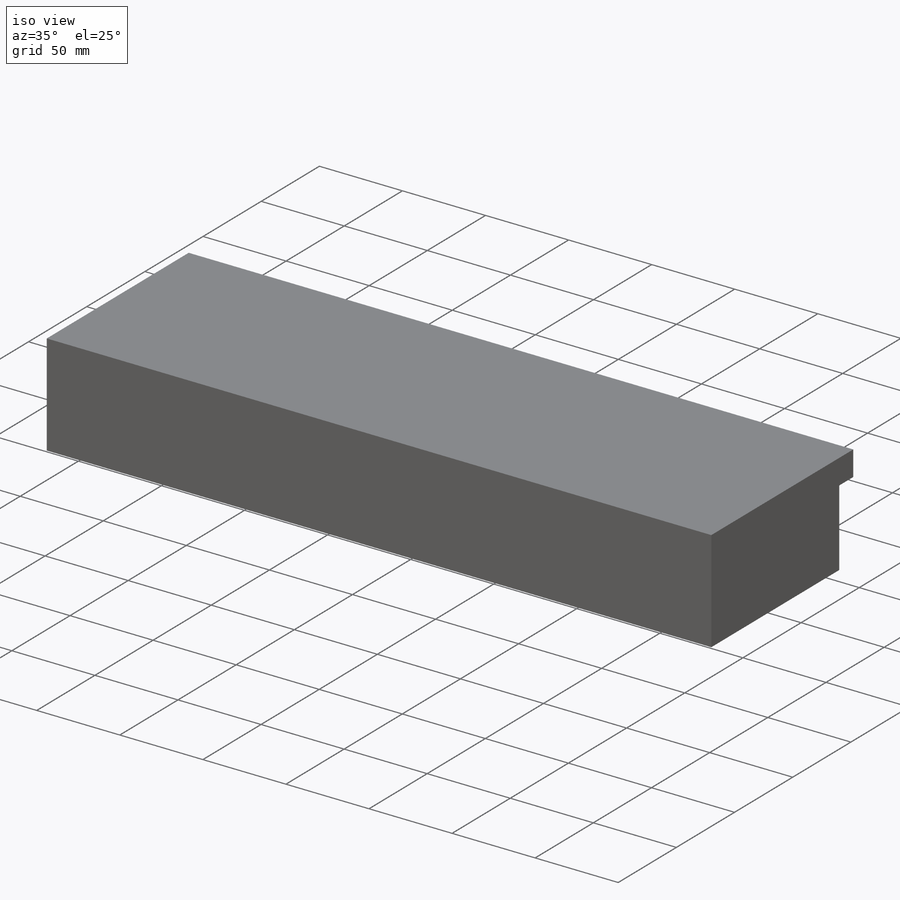
[diagram: iso view]
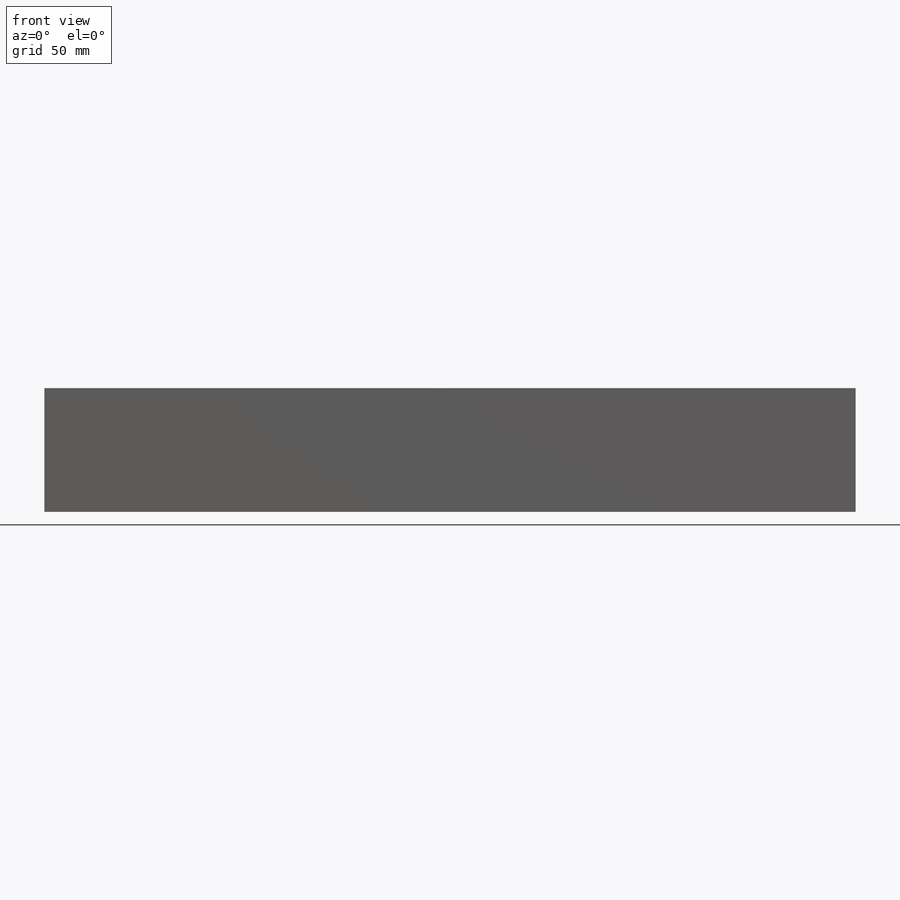
[diagram: front view]
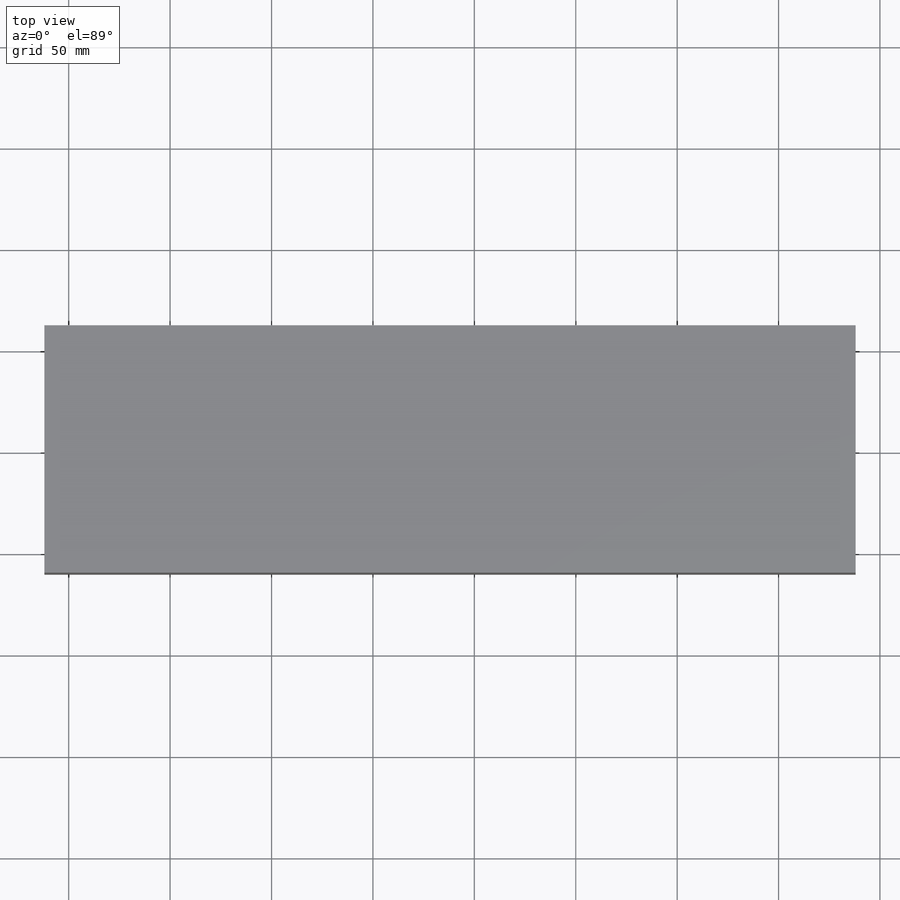
[diagram: top view]
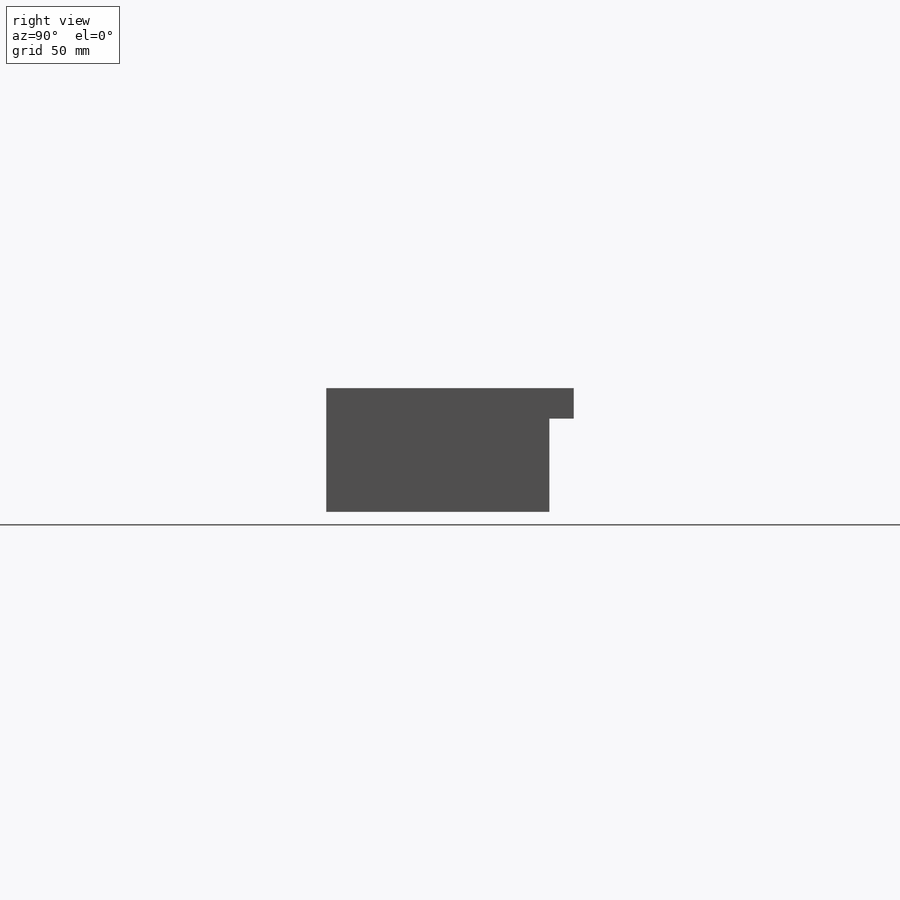
[diagram: right view]
SOLIDWORKS PART (.sldprt)
format: sldprt  version: not decoded by parser v0  size: 285,696 bytes
history: native  units: mm
features: sketch x6, plane x3, extrude x3, cut_extrude x2, material x1 (+14 scaffold rows collapsed)
feature tree (29):
  scaffold x14  (default folders/planes/origin — collapsed)
  material  "Matériau <non spécifié>"
  plane  "Plan de face"
  plane  "Plan de dessus"
  plane  "Plan de droite"
  sketch  "Esquisse3"  dims[D1=0.0mm]
  extrude  "Extrusion1"  Depth=110mm
  sketch  "Esquisse8"  dims[D1=12.0mm]
  extrude  "Extrusion3"  Depth=15mm
  sketch  "Esquisse9"  dims[D1=0.0mm]
  sketch  "Esquisse11"  dims[D1=0.0mm]
  extrude  "Extrusion5"  Depth=6mm
  sketch  "Esquisse10"  dims[c1.D9=25.0mm c1.D10=12.5mm c1.D16=2.0mm c1.D17=1.0mm c1.D18=6.0mm c1.D20=6.0mm c1.D21=6.0mm c1.D1=32.0mm c1.D2=16.0mm c1.D3=5.0mm c1.D4=2.25mm c1.D5=12.0mm c1.D6=41.0mm c1.D7=1.5mm c1.D8=4.25mm c2.D10=147.0mm c2.D11=17.5mm c2.D12=7.0mm c2.D13=130.0mm c2.D14=8.0mm c2.D15=40.0mm c2.D19=24.0mm c3.D10=12.5mm c3.D20=10.75mm c3.D22=10.0mm c3.D23=20.0mm]
  cut_extrude  "Extrusion4"  Depth=1.5mm
  sketch  "Esquisse12"  dims[D1=0.0mm D2=0.0mm D3=0.0mm D4=0.0mm D5=0.0mm]
  cut_extrude  "Extrusion6"  Depth=20mm
decode coverage: 11 of 11 modeling features carry decoded parameters
note: suppression state not decoded; provenance and decode notes live in map.json
